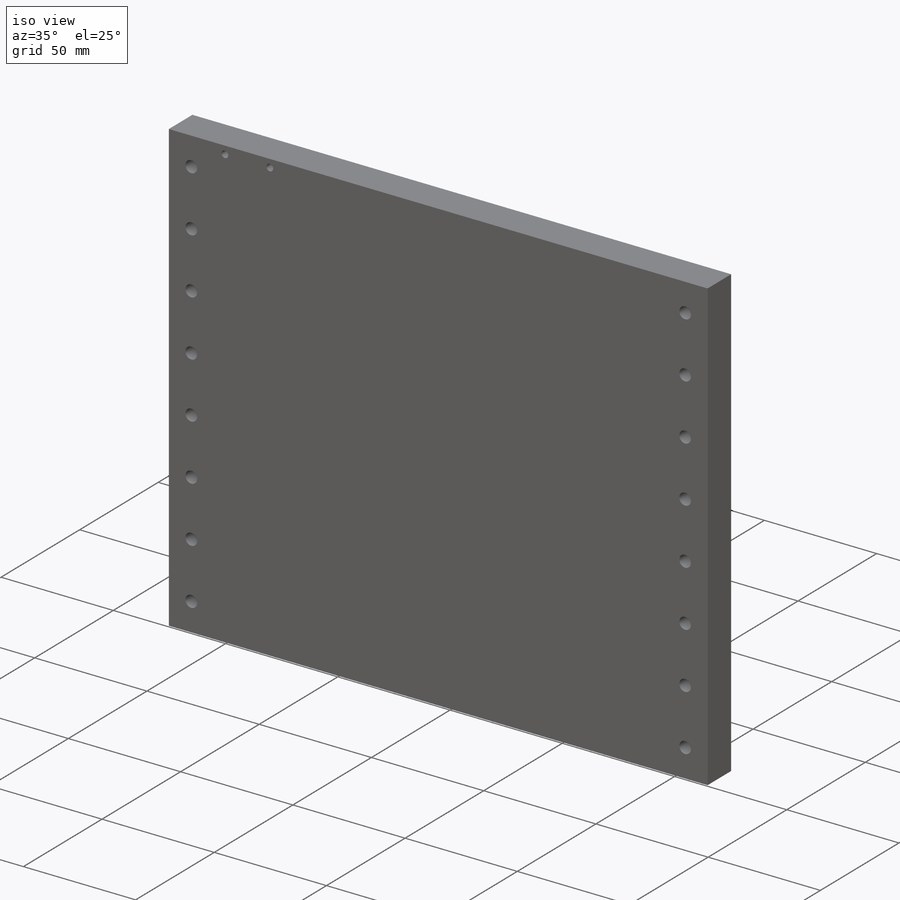
[diagram: iso view]
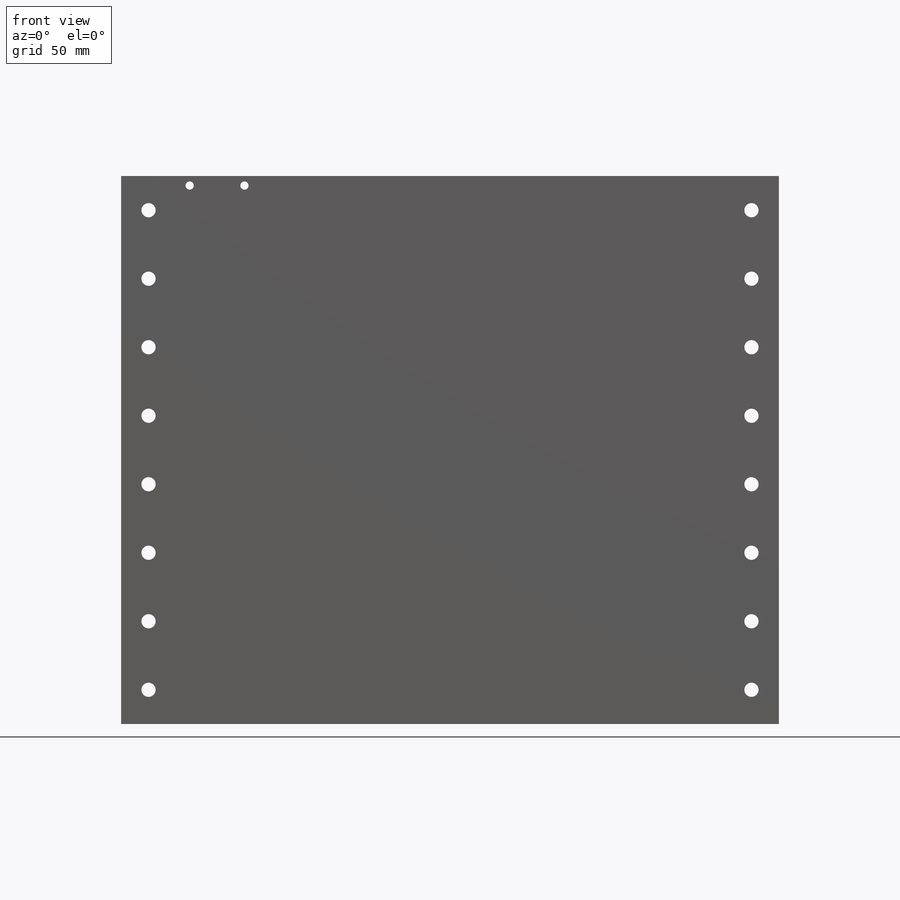
[diagram: front view]
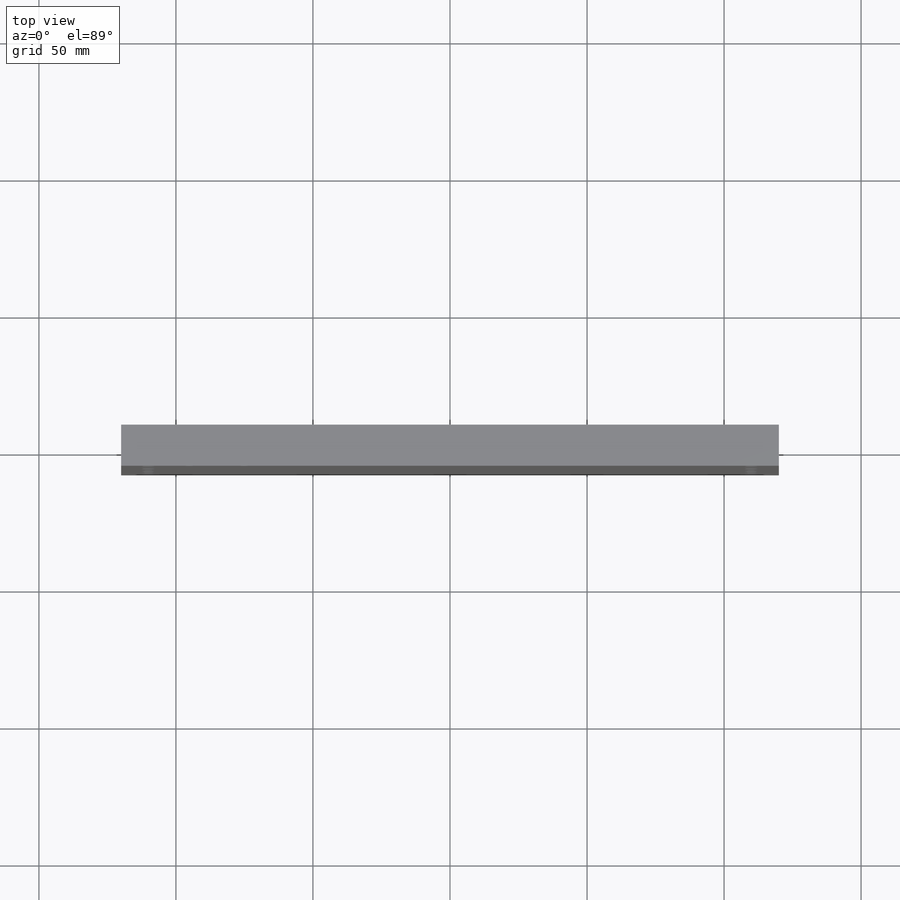
[diagram: top view]
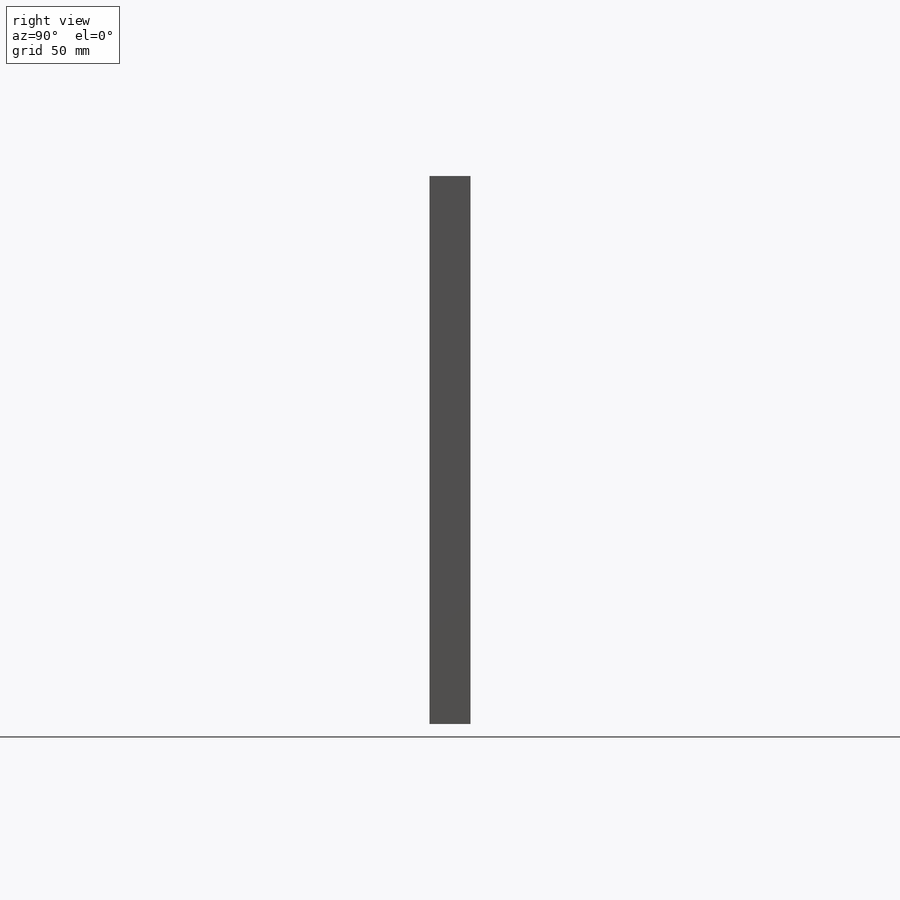
[diagram: right view]
SOLIDWORKS PART (.sldprt)
format: sldprt  version: not decoded by parser v0  size: 214,528 bytes
history: native  units: mm
features: sketch x4, cut_extrude x2, material x1, extrude x1, pattern_linear x1 (+12 scaffold rows collapsed)
feature tree (21):
  scaffold x12  (default folders/planes/origin — collapsed)
  material  "Material <not specified>"
  sketch  "Sketch1"  dims[D1=240.0mm D2=200.0mm]
  extrude  "Boss-Extrude1"  Depth=15mm
  sketch  "Sketch4"  dims[c1.D4=5.2mm c1.D5=5.2mm c1.D1=12.5mm c1.D2=10.0mm c1.D3=10.0mm c2.D1=12.5mm]
  cut_extrude  "Cut-Extrude3"  [1 undecoded]
  pattern_linear  "LPattern1"  Count1=8 Count2=1 Spacing1=25mm Spacing2=10mm
  sketch  "Sketch3"  dims[c1.D3=10.0mm c1.D4=10.0mm c1.D5=10.0mm c1.D6=10.0mm c2.D3=5.0mm c2.D1=185.0mm c2.D2=200.0mm c3.D1=195.0mm c3.D2=210.0mm]
  sketch  "Sketch5"  dims[c1.D1=3.0mm c1.D2=3.0mm c1.D3=3.0mm c1.D4=3.0mm c1.D5=3.0mm c1.D6=3.0mm c2.D3=20.0mm c2.D4=3.5mm c2.D5=25.0mm c2.D6=3.5mm]
  cut_extrude  "Cut-Extrude4"  [1 undecoded]
decode coverage: 6 of 8 modeling features carry decoded parameters
note: 2 parameter values undecoded
note: suppression state not decoded; provenance and decode notes live in map.json
